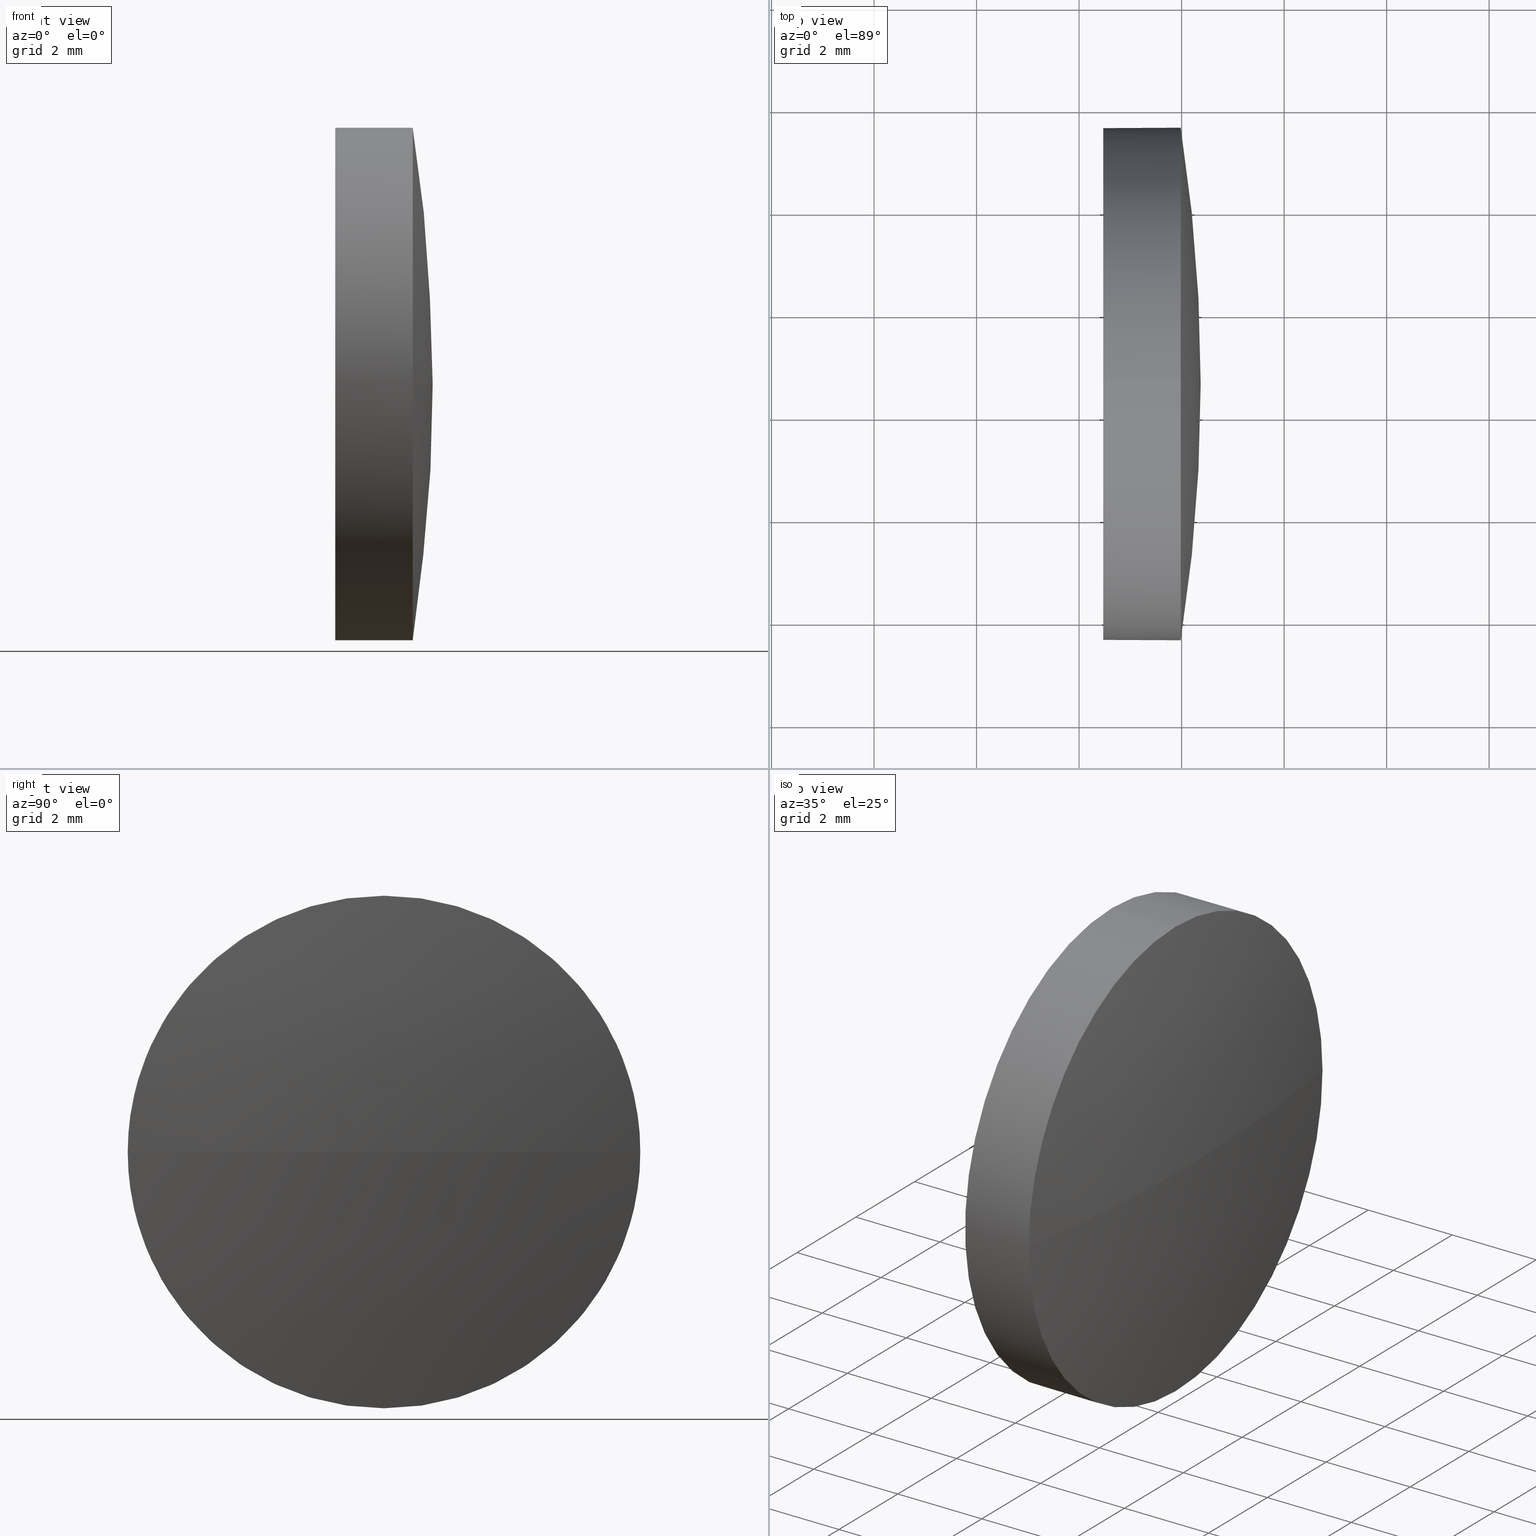
[diagram: canonical four-view strip — front | top / right | iso, engineering-drawing reading convention]
A machine part, canonical four-view strip (front | top / right | iso — engineering-drawing reading convention). The complete STEP part file that produces these views, byte-faithful:
ISO-10303-21;
HEADER;
FILE_DESCRIPTION (( 'STEP AP214' ),
    '1' );
FILE_NAME ('100193.STEP',
    '2019-05-22T01:30:04',
    ( '' ),
    ( '' ),
    'SwSTEP 2.0',
    'SolidWorks 2016',
    '' );
FILE_SCHEMA (( 'AUTOMOTIVE_DESIGN' ));
ENDSEC;

DATA;
#1 = EDGE_LOOP ( 'NONE', ( #82, #69, #148, #142 ) ) ;
#2 = DIRECTION ( 'NONE',  ( 0.0000000000000000000, 0.0000000000000000000, -1.000000000000000000 ) ) ;
#3 = ORIENTED_EDGE ( 'NONE', *, *, #158, .T. ) ;
#4 = FILL_AREA_STYLE_COLOUR ( '', #174 ) ;
#5 =( NAMED_UNIT ( * ) PLANE_ANGLE_UNIT ( ) SI_UNIT ( $, .RADIAN. ) );
#6 = CIRCLE ( 'NONE', #105, 4.999999999999997300 ) ;
#7 = FILL_AREA_STYLE ('',( #52 ) ) ;
#8 = ORIENTED_EDGE ( 'NONE', *, *, #120, .T. ) ;
#9 = VERTEX_POINT ( 'NONE', #60 ) ;
#10 = PRODUCT ( '100193', '100193', '', ( #184 ) ) ;
#11 = VERTEX_POINT ( 'NONE', #178 ) ;
#12 = CYLINDRICAL_SURFACE ( 'NONE', #186, 4.999999999999997300 ) ;
#13 = ORIENTED_EDGE ( 'NONE', *, *, #120, .F. ) ;
#14 = DIRECTION ( 'NONE',  ( 1.000000000000000000, 0.0000000000000000000, 0.0000000000000000000 ) ) ;
#15 = ORIENTED_EDGE ( 'NONE', *, *, #59, .T. ) ;
#16 = CARTESIAN_POINT ( 'NONE',  ( 409.6747124043386600, 38.61574357864396500, 0.0000000000000000000 ) ) ;
#17 = CIRCLE ( 'NONE', #95, 4.999999999999997300 ) ;
#18 = EDGE_CURVE ( 'NONE', #88, #100, #6, .T. ) ;
#19 = APPLICATION_PROTOCOL_DEFINITION ( 'draft international standard', 'automotive_design', 1998, #41 ) ;
#20 = DIRECTION ( 'NONE',  ( 0.0000000000000000000, 0.0000000000000000000, 1.000000000000000000 ) ) ;
#21 = CARTESIAN_POINT ( 'NONE',  ( 380.1261026071219400, 38.61574357864402900, 0.0000000000000000000 ) ) ;
#22 = CARTESIAN_POINT ( 'NONE',  ( 411.9823846584040400, 33.61574357864400000, 0.0000000000000000000 ) ) ;
#23 = SURFACE_STYLE_USAGE ( .BOTH. , #99 ) ;
#24 = UNCERTAINTY_MEASURE_WITH_UNIT (LENGTH_MEASURE( 1.000000000000000100E-005 ), #86, 'distance_accuracy_value', 'NONE');
#25 = CARTESIAN_POINT ( 'NONE',  ( 409.6747124043386600, 38.61574357864396500, -4.999999999999997300 ) ) ;
#26 =( NAMED_UNIT ( * ) SI_UNIT ( $, .STERADIAN. ) SOLID_ANGLE_UNIT ( ) );
#27 = ORIENTED_EDGE ( 'NONE', *, *, #133, .T. ) ;
#28 = DIRECTION ( 'NONE',  ( -1.000000000000000000, -0.0000000000000000000, -0.0000000000000000000 ) ) ;
#29 = EDGE_CURVE ( 'NONE', #78, #88, #115, .T. ) ;
#30 = DIRECTION ( 'NONE',  ( -1.000000000000000000, -0.0000000000000000000, -0.0000000000000000000 ) ) ;
#31 = DIRECTION ( 'NONE',  ( 0.0000000000000000000, -1.224646799147353200E-016, 1.000000000000000000 ) ) ;
#32 = ORIENTED_EDGE ( 'NONE', *, *, #163, .F. ) ;
#33 = LINE ( 'NONE', #25, #154 ) ;
#34 = VERTEX_POINT ( 'NONE', #22 ) ;
#35 = ORIENTED_EDGE ( 'NONE', *, *, #73, .F. ) ;
#36 = DIRECTION ( 'NONE',  ( -1.000000000000000000, -0.0000000000000000000, -0.0000000000000000000 ) ) ;
#37 = CARTESIAN_POINT ( 'NONE',  ( 380.1261026071219400, 38.61574357864402900, 0.0000000000000000000 ) ) ;
#38 = CYLINDRICAL_SURFACE ( 'NONE', #169, 4.999999999999997300 ) ;
#39 = AXIS2_PLACEMENT_3D ( 'NONE', #116, #150, #66 ) ;
#40 = FACE_OUTER_BOUND ( 'NONE', #1, .T. ) ;
#41 = APPLICATION_CONTEXT ( 'automotive_design' ) ;
#42 = SURFACE_STYLE_FILL_AREA ( #7 ) ;
#43 = DIRECTION ( 'NONE',  ( -1.000000000000000000, -0.0000000000000000000, -0.0000000000000000000 ) ) ;
#44 = DIRECTION ( 'NONE',  ( -1.000000000000000000, -0.0000000000000000000, -0.0000000000000000000 ) ) ;
#45 = SPHERICAL_SURFACE ( 'NONE', #124, 32.24628205128210800 ) ;
#46 = PRESENTATION_STYLE_ASSIGNMENT (( #23 ) ) ;
#47 = DIRECTION ( 'NONE',  ( 0.0000000000000000000, -1.000000000000000000, 0.0000000000000000000 ) ) ;
#48 = DIRECTION ( 'NONE',  ( 1.000000000000000000, 0.0000000000000000000, 0.0000000000000000000 ) ) ;
#49 = CARTESIAN_POINT ( 'NONE',  ( 0.0000000000000000000, 0.0000000000000000000, 0.0000000000000000000 ) ) ;
#50 = ORIENTED_EDGE ( 'NONE', *, *, #79, .F. ) ;
#51 = FILL_AREA_STYLE ('',( #4 ) ) ;
#52 = FILL_AREA_STYLE_COLOUR ( '', #71 ) ;
#53 = CARTESIAN_POINT ( 'NONE',  ( 380.1261026071219400, 38.61574357864402900, 0.0000000000000000000 ) ) ;
#54 = APPLICATION_PROTOCOL_DEFINITION ( 'draft international standard', 'automotive_design', 1998, #102 ) ;
#55 = AXIS2_PLACEMENT_3D ( 'NONE', #143, #48, #2 ) ;
#56 = ADVANCED_FACE ( 'NONE', ( #167 ), #38, .T. ) ;
#57 = CLOSED_SHELL ( 'NONE', ( #56, #92, #72, #140, #139 ) ) ;
#58 = DIRECTION ( 'NONE',  ( 0.0000000000000000000, 0.0000000000000000000, -1.000000000000000000 ) ) ;
#59 = EDGE_CURVE ( 'NONE', #34, #78, #123, .T. ) ;
#60 = CARTESIAN_POINT ( 'NONE',  ( 410.4723846584040500, 38.61574357864396500, 4.999999999999997300 ) ) ;
#61 = ORIENTED_EDGE ( 'NONE', *, *, #29, .T. ) ;
#62 = DIRECTION ( 'NONE',  ( 0.0000000000000000000, 0.0000000000000000000, 1.000000000000000000 ) ) ;
#63 = CARTESIAN_POINT ( 'NONE',  ( 410.4723846584040500, 38.61574357864396500, 0.0000000000000000000 ) ) ;
#64 = EDGE_CURVE ( 'NONE', #78, #9, #157, .T. ) ;
#65 = FACE_OUTER_BOUND ( 'NONE', #155, .T. ) ;
#66 = DIRECTION ( 'NONE',  ( 0.0000000000000000000, 0.0000000000000000000, 1.000000000000000000 ) ) ;
#67 = PRODUCT_RELATED_PRODUCT_CATEGORY ( 'part', '', ( #10 ) ) ;
#68 = CARTESIAN_POINT ( 'NONE',  ( 411.9823846584040400, 43.61574357864400000, 6.123233995736730800E-016 ) ) ;
#69 = ORIENTED_EDGE ( 'NONE', *, *, #73, .T. ) ;
#70 = EDGE_LOOP ( 'NONE', ( #128, #3, #50, #106, #61 ) ) ;
#71 = COLOUR_RGB ( '',1.000000000000000000, 1.000000000000000000, 1.000000000000000000 ) ;
#72 = ADVANCED_FACE ( 'NONE', ( #65 ), #45, .T. ) ;
#73 = EDGE_CURVE ( 'NONE', #165, #88, #161, .T. ) ;
#74 = CIRCLE ( 'NONE', #111, 4.999999999999997300 ) ;
#75 = EDGE_LOOP ( 'NONE', ( #160, #8, #15, #90, #32 ) ) ;
#76 = SHAPE_DEFINITION_REPRESENTATION ( #94, #145 ) ;
#77 = PLANE ( 'NONE',  #55 ) ;
#78 = VERTEX_POINT ( 'NONE', #153 ) ;
#79 = EDGE_CURVE ( 'NONE', #9, #11, #17, .T. ) ;
#80 = CIRCLE ( 'NONE', #98, 4.999999999999997300 ) ;
#81 = DIRECTION ( 'NONE',  ( 0.0000000000000000000, 0.0000000000000000000, 1.000000000000000000 ) ) ;
#82 = ORIENTED_EDGE ( 'NONE', *, *, #133, .F. ) ;
#83 = CARTESIAN_POINT ( 'NONE',  ( 411.9823846584040400, 38.61574357864396500, 0.0000000000000000000 ) ) ;
#84 =( NAMED_UNIT ( * ) SI_UNIT ( $, .STERADIAN. ) SOLID_ANGLE_UNIT ( ) );
#85 = SURFACE_STYLE_FILL_AREA ( #51 ) ;
#86 =( LENGTH_UNIT ( ) NAMED_UNIT ( * ) SI_UNIT ( .MILLI., .METRE. ) );
#87 = MANIFOLD_SOLID_BREP ( '��ת1', #57 ) ;
#88 = VERTEX_POINT ( 'NONE', #68 ) ;
#89 = AXIS2_PLACEMENT_3D ( 'NONE', #21, #31, #117 ) ;
#90 = ORIENTED_EDGE ( 'NONE', *, *, #64, .T. ) ;
#91 = MECHANICAL_DESIGN_GEOMETRIC_PRESENTATION_REPRESENTATION (  '', ( #175 ), #146 ) ;
#92 = ADVANCED_FACE ( 'NONE', ( #40 ), #127, .T. ) ;
#93 = CARTESIAN_POINT ( 'NONE',  ( 411.9823846584040400, 38.61574357864396500, -4.999999999999997300 ) ) ;
#94 = PRODUCT_DEFINITION_SHAPE ( 'NONE', 'NONE',  #179 ) ;
#95 = AXIS2_PLACEMENT_3D ( 'NONE', #151, #172, #181 ) ;
#96 = SURFACE_STYLE_USAGE ( .BOTH. , #164 ) ;
#97 =( NAMED_UNIT ( * ) PLANE_ANGLE_UNIT ( ) SI_UNIT ( $, .RADIAN. ) );
#98 = AXIS2_PLACEMENT_3D ( 'NONE', #63, #114, #62 ) ;
#99 = SURFACE_SIDE_STYLE ('',( #42 ) ) ;
#100 = VERTEX_POINT ( 'NONE', #93 ) ;
#101 = DIRECTION ( 'NONE',  ( 0.0000000000000000000, 0.0000000000000000000, 1.000000000000000000 ) ) ;
#102 = APPLICATION_CONTEXT ( 'automotive_design' ) ;
#103 =( GEOMETRIC_REPRESENTATION_CONTEXT ( 3 ) GLOBAL_UNCERTAINTY_ASSIGNED_CONTEXT ( ( #104 ) ) GLOBAL_UNIT_ASSIGNED_CONTEXT ( ( #131, #149, #26 ) ) REPRESENTATION_CONTEXT ( 'NONE', 'WORKASPACE' ) );
#104 = UNCERTAINTY_MEASURE_WITH_UNIT (LENGTH_MEASURE( 1.000000000000000100E-005 ), #131, 'distance_accuracy_value', 'NONE');
#105 = AXIS2_PLACEMENT_3D ( 'NONE', #83, #112, #81 ) ;
#106 = ORIENTED_EDGE ( 'NONE', *, *, #64, .F. ) ;
#107 = DIRECTION ( 'NONE',  ( 0.0000000000000000000, 0.0000000000000000000, 1.000000000000000000 ) ) ;
#108 = DIRECTION ( 'NONE',  ( -1.000000000000000000, -0.0000000000000000000, -0.0000000000000000000 ) ) ;
#109 = AXIS2_PLACEMENT_3D ( 'NONE', #170, #30, #180 ) ;
#110 = VECTOR ( 'NONE', #43, 1000.000000000000000 ) ;
#111 = AXIS2_PLACEMENT_3D ( 'NONE', #137, #44, #177 ) ;
#112 = DIRECTION ( 'NONE',  ( -1.000000000000000000, -0.0000000000000000000, -0.0000000000000000000 ) ) ;
#113 = ORIENTED_EDGE ( 'NONE', *, *, #163, .T. ) ;
#114 = DIRECTION ( 'NONE',  ( -1.000000000000000000, -0.0000000000000000000, -0.0000000000000000000 ) ) ;
#115 = CIRCLE ( 'NONE', #109, 4.999999999999997300 ) ;
#116 = CARTESIAN_POINT ( 'NONE',  ( 411.9823846584040400, 38.61574357864396500, 0.0000000000000000000 ) ) ;
#117 = DIRECTION ( 'NONE',  ( 0.0000000000000000000, -1.000000000000000000, -1.224646799147353200E-016 ) ) ;
#118 = CARTESIAN_POINT ( 'NONE',  ( 409.6747124043386600, 38.61574357864396500, 0.0000000000000000000 ) ) ;
#119 =( LENGTH_UNIT ( ) NAMED_UNIT ( * ) SI_UNIT ( .MILLI., .METRE. ) );
#120 = EDGE_CURVE ( 'NONE', #100, #34, #74, .T. ) ;
#121 = DIRECTION ( 'NONE',  ( 0.0000000000000000000, -1.000000000000000000, 0.0000000000000000000 ) ) ;
#122 = PRESENTATION_STYLE_ASSIGNMENT (( #96 ) ) ;
#123 = CIRCLE ( 'NONE', #39, 4.999999999999997300 ) ;
#124 = AXIS2_PLACEMENT_3D ( 'NONE', #53, #20, #121 ) ;
#125 = FACE_OUTER_BOUND ( 'NONE', #75, .T. ) ;
#126 = AXIS2_PLACEMENT_3D ( 'NONE', #37, #58, #144 ) ;
#127 = SPHERICAL_SURFACE ( 'NONE', #136, 32.24628205128210800 ) ;
#128 = ORIENTED_EDGE ( 'NONE', *, *, #18, .T. ) ;
#129 = STYLED_ITEM ( 'NONE', ( #122 ), #145 ) ;
#130 = ORIENTED_EDGE ( 'NONE', *, *, #18, .F. ) ;
#131 =( LENGTH_UNIT ( ) NAMED_UNIT ( * ) SI_UNIT ( .MILLI., .METRE. ) );
#132 = PRODUCT_DEFINITION_CONTEXT ( 'detailed design', #102, 'design' ) ;
#133 = EDGE_CURVE ( 'NONE', #165, #34, #156, .T. ) ;
#134 = CARTESIAN_POINT ( 'NONE',  ( 409.6747124043386600, 38.61574357864396500, 4.999999999999997300 ) ) ;
#135 = DIRECTION ( 'NONE',  ( 0.0000000000000000000, 0.0000000000000000000, 1.000000000000000000 ) ) ;
#136 = AXIS2_PLACEMENT_3D ( 'NONE', #152, #101, #47 ) ;
#137 = CARTESIAN_POINT ( 'NONE',  ( 411.9823846584040400, 38.61574357864396500, 0.0000000000000000000 ) ) ;
#138 = PRESENTATION_LAYER_ASSIGNMENT (  '', '', ( #129 ) ) ;
#139 = ADVANCED_FACE ( 'NONE', ( #171 ), #77, .F. ) ;
#140 = ADVANCED_FACE ( 'NONE', ( #125 ), #12, .T. ) ;
#141 = DIRECTION ( 'NONE',  ( 0.0000000000000000000, 0.0000000000000000000, 1.000000000000000000 ) ) ;
#142 = ORIENTED_EDGE ( 'NONE', *, *, #59, .F. ) ;
#143 = CARTESIAN_POINT ( 'NONE',  ( 410.4723846584040500, 38.61574357864396500, 0.0000000000000000000 ) ) ;
#144 = DIRECTION ( 'NONE',  ( -1.000000000000000000, 0.0000000000000000000, 0.0000000000000000000 ) ) ;
#145 = ADVANCED_BREP_SHAPE_REPRESENTATION ( '100193', ( #87, #173 ), #159 ) ;
#146 =( GEOMETRIC_REPRESENTATION_CONTEXT ( 3 ) GLOBAL_UNCERTAINTY_ASSIGNED_CONTEXT ( ( #168 ) ) GLOBAL_UNIT_ASSIGNED_CONTEXT ( ( #119, #97, #183 ) ) REPRESENTATION_CONTEXT ( 'NONE', 'WORKASPACE' ) );
#147 = MECHANICAL_DESIGN_GEOMETRIC_PRESENTATION_REPRESENTATION (  '', ( #129 ), #103 ) ;
#148 = ORIENTED_EDGE ( 'NONE', *, *, #29, .F. ) ;
#149 =( NAMED_UNIT ( * ) PLANE_ANGLE_UNIT ( ) SI_UNIT ( $, .RADIAN. ) );
#150 = DIRECTION ( 'NONE',  ( -1.000000000000000000, -0.0000000000000000000, -0.0000000000000000000 ) ) ;
#151 = CARTESIAN_POINT ( 'NONE',  ( 410.4723846584040500, 38.61574357864396500, 0.0000000000000000000 ) ) ;
#152 = CARTESIAN_POINT ( 'NONE',  ( 380.1261026071219400, 38.61574357864402900, 0.0000000000000000000 ) ) ;
#153 = CARTESIAN_POINT ( 'NONE',  ( 411.9823846584040400, 38.61574357864396500, 4.999999999999997300 ) ) ;
#154 = VECTOR ( 'NONE', #36, 1000.000000000000000 ) ;
#155 = EDGE_LOOP ( 'NONE', ( #35, #27, #13, #130 ) ) ;
#156 = CIRCLE ( 'NONE', #126, 32.24628205128210800 ) ;
#157 = LINE ( 'NONE', #134, #110 ) ;
#158 = EDGE_CURVE ( 'NONE', #100, #11, #33, .T. ) ;
#159 =( GEOMETRIC_REPRESENTATION_CONTEXT ( 3 ) GLOBAL_UNCERTAINTY_ASSIGNED_CONTEXT ( ( #24 ) ) GLOBAL_UNIT_ASSIGNED_CONTEXT ( ( #86, #5, #84 ) ) REPRESENTATION_CONTEXT ( 'NONE', 'WORKASPACE' ) );
#160 = ORIENTED_EDGE ( 'NONE', *, *, #158, .F. ) ;
#161 = CIRCLE ( 'NONE', #89, 32.24628205128210800 ) ;
#162 = PRODUCT_DEFINITION_FORMATION_WITH_SPECIFIED_SOURCE ( '�κ�', '', #10, .NOT_KNOWN. ) ;
#163 = EDGE_CURVE ( 'NONE', #11, #9, #80, .T. ) ;
#164 = SURFACE_SIDE_STYLE ('',( #85 ) ) ;
#165 = VERTEX_POINT ( 'NONE', #166 ) ;
#166 = CARTESIAN_POINT ( 'NONE',  ( 412.3723846584040300, 38.61574357864402900, 0.0000000000000000000 ) ) ;
#167 = FACE_OUTER_BOUND ( 'NONE', #70, .T. ) ;
#168 = UNCERTAINTY_MEASURE_WITH_UNIT (LENGTH_MEASURE( 1.000000000000000100E-005 ), #119, 'distance_accuracy_value', 'NONE');
#169 = AXIS2_PLACEMENT_3D ( 'NONE', #118, #28, #135 ) ;
#170 = CARTESIAN_POINT ( 'NONE',  ( 411.9823846584040400, 38.61574357864396500, 0.0000000000000000000 ) ) ;
#171 = FACE_OUTER_BOUND ( 'NONE', #176, .T. ) ;
#172 = DIRECTION ( 'NONE',  ( -1.000000000000000000, -0.0000000000000000000, -0.0000000000000000000 ) ) ;
#173 = AXIS2_PLACEMENT_3D ( 'NONE', #49, #141, #14 ) ;
#174 = COLOUR_RGB ( '',1.000000000000000000, 1.000000000000000000, 1.000000000000000000 ) ;
#175 = STYLED_ITEM ( 'NONE', ( #46 ), #87 ) ;
#176 = EDGE_LOOP ( 'NONE', ( #185, #113 ) ) ;
#177 = DIRECTION ( 'NONE',  ( 0.0000000000000000000, 0.0000000000000000000, 1.000000000000000000 ) ) ;
#178 = CARTESIAN_POINT ( 'NONE',  ( 410.4723846584040500, 38.61574357864396500, -4.999999999999997300 ) ) ;
#179 = PRODUCT_DEFINITION ( 'δ֪', '', #162, #132 ) ;
#180 = DIRECTION ( 'NONE',  ( 0.0000000000000000000, 0.0000000000000000000, 1.000000000000000000 ) ) ;
#181 = DIRECTION ( 'NONE',  ( 0.0000000000000000000, 0.0000000000000000000, 1.000000000000000000 ) ) ;
#182 = PRESENTATION_LAYER_ASSIGNMENT (  '', '', ( #175 ) ) ;
#183 =( NAMED_UNIT ( * ) SI_UNIT ( $, .STERADIAN. ) SOLID_ANGLE_UNIT ( ) );
#184 = PRODUCT_CONTEXT ( 'NONE', #41, 'mechanical' ) ;
#185 = ORIENTED_EDGE ( 'NONE', *, *, #79, .T. ) ;
#186 = AXIS2_PLACEMENT_3D ( 'NONE', #16, #108, #107 ) ;
ENDSEC;
END-ISO-10303-21;
